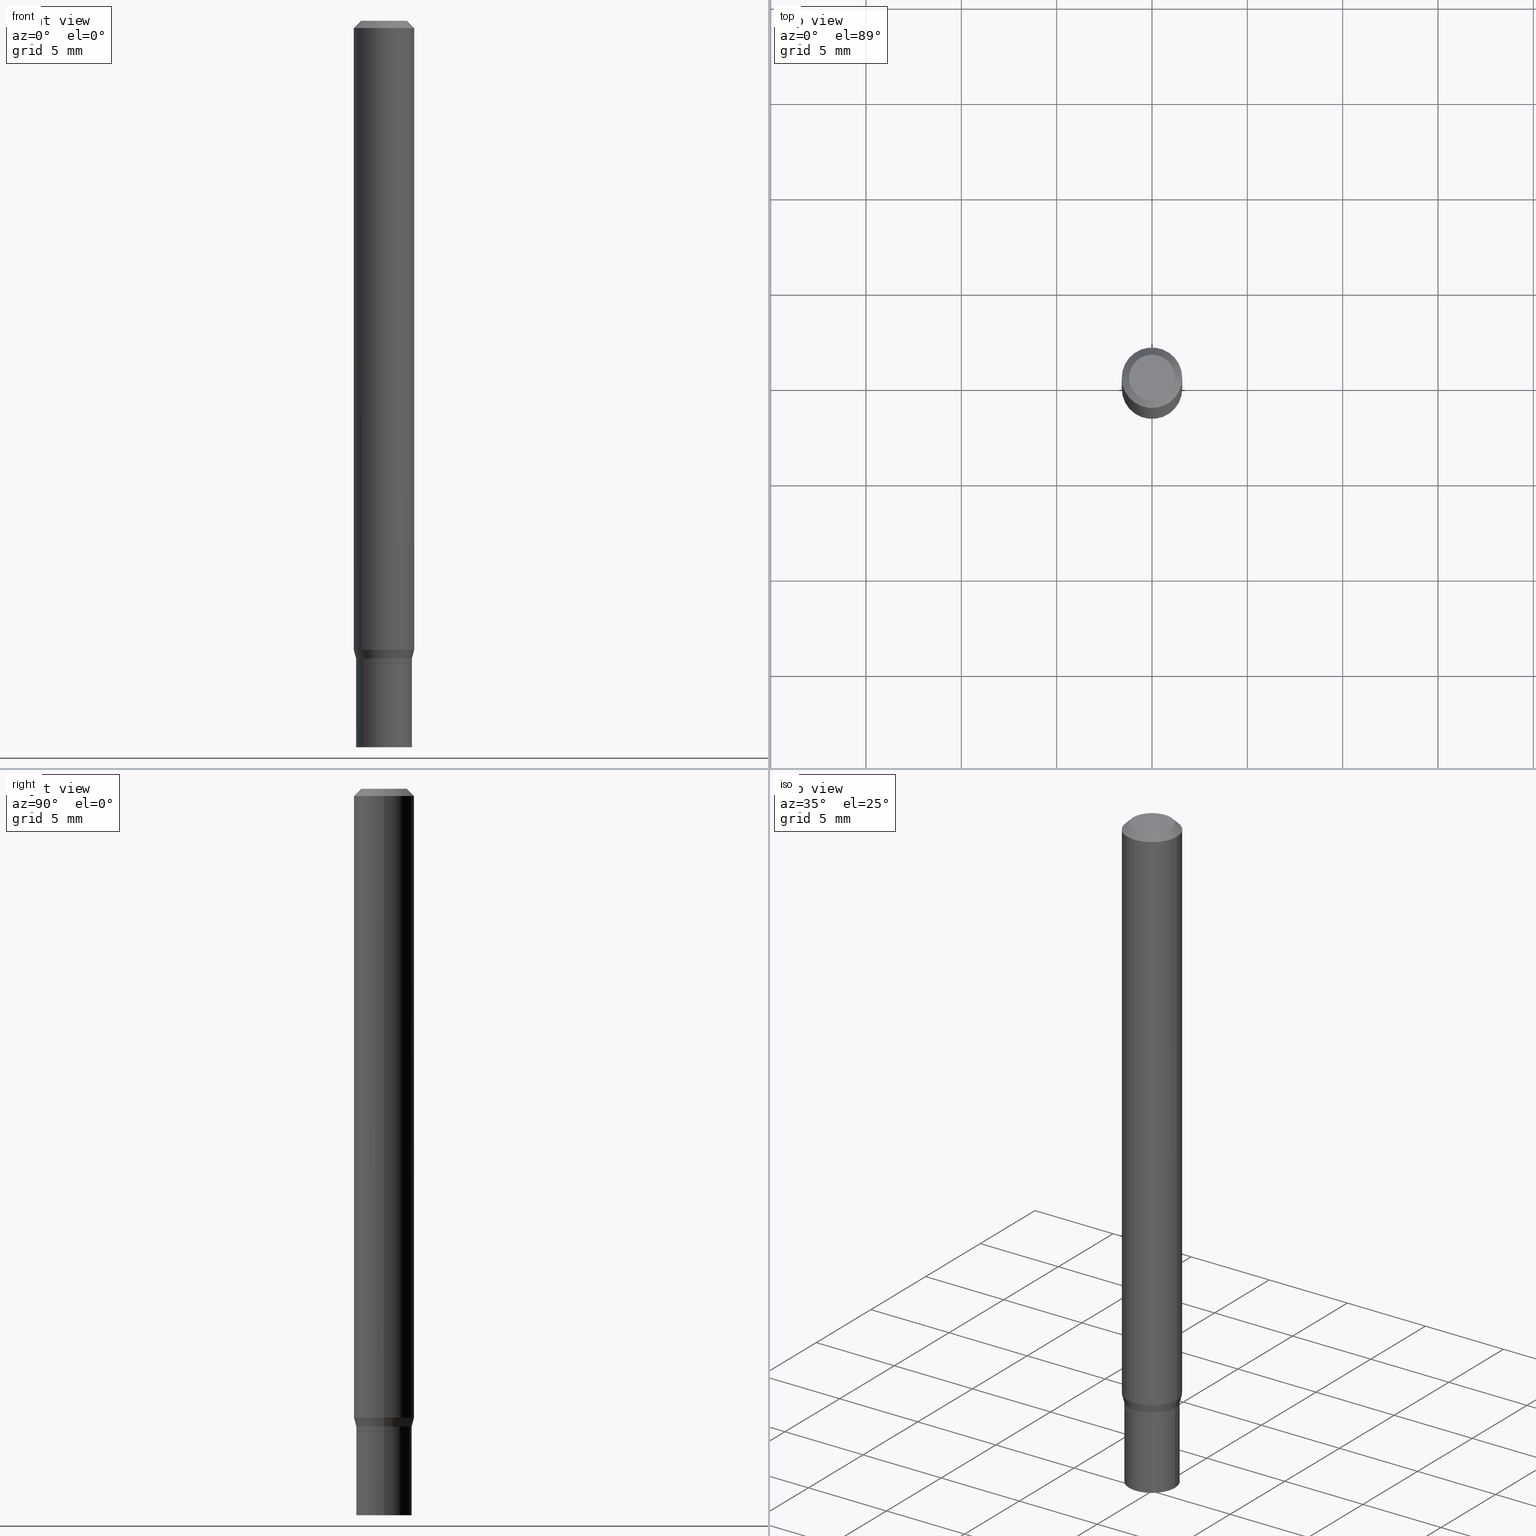
[diagram: canonical four-view strip — front | top / right | iso, engineering-drawing reading convention]
A machine part, canonical four-view strip (front | top / right | iso — engineering-drawing reading convention). The complete STEP part file that produces these views, byte-faithful:
ISO-10303-21;
HEADER;
FILE_DESCRIPTION (( 'STEP AP203' ),
    '1' );
FILE_NAME ('00369.STEP',
    '2024-03-19T21:04:32',
    ( '' ),
    ( '' ),
    'SwSTEP 2.0',
    'SolidWorks 2023',
    '' );
FILE_SCHEMA (( 'CONFIG_CONTROL_DESIGN' ));
ENDSEC;

DATA;
#1 = CARTESIAN_POINT ( 'NONE',  ( 0.06250000000000000000, -4.969564161860607604E-15, -1.298339745962155511 ) ) ;
#2 = CC_DESIGN_PERSON_AND_ORGANIZATION_ASSIGNMENT ( #248, #50, ( #121 ) ) ;
#3 = APPROVAL_DATE_TIME ( #37, #295 ) ;
#4 = APPROVAL_DATE_TIME ( #313, #353 ) ;
#5 = ORIENTED_EDGE ( 'NONE', *, *, #57, .T. ) ;
#6 = DIRECTION ( 'NONE',  ( -2.445468806185136597E-29, 3.491481338843145583E-15, 1.000000000000000000 ) ) ;
#7 = FACE_OUTER_BOUND ( 'NONE', #159, .T. ) ;
#8 = COORDINATED_UNIVERSAL_TIME_OFFSET ( 5, 0, .BEHIND. ) ;
#9 = CALENDAR_DATE ( 2024, 19, 3 ) ;
#10 = AXIS2_PLACEMENT_3D ( 'NONE', #328, #406, #298 ) ;
#11 = EDGE_CURVE ( 'NONE', #437, #156, #58, .T. ) ;
#12 = CARTESIAN_POINT ( 'NONE',  ( 3.245137105807676860E-29, -4.633195736644854276E-15, -1.327000000000000179 ) ) ;
#13 = MANIFOLD_SOLID_BREP ( 'Body-Move/Copy2[1]', #335 ) ;
#14 = ADVANCED_FACE ( 'NONE', ( #233 ), #379, .F. ) ;
#15 = CARTESIAN_POINT ( 'NONE',  ( 3.245137105807676860E-29, -4.633195736644854276E-15, -1.327000000000000179 ) ) ;
#16 = CARTESIAN_POINT ( 'NONE',  ( 4.015203539669927580E-16, 0.05749999999999536732, -1.327000000000000401 ) ) ;
#17 = DIRECTION ( 'NONE',  ( 1.000000000000000000, -6.982962677686265133E-15, 0.000000000000000000 ) ) ;
#18 = DIRECTION ( 'NONE',  ( -2.445468806185136877E-29, 3.491481338843145188E-15, 1.000000000000000000 ) ) ;
#19 = CIRCLE ( 'NONE', #246, 0.05750000000000000250 ) ;
#20 = ORIENTED_EDGE ( 'NONE', *, *, #142, .F. ) ;
#21 = CARTESIAN_POINT ( 'NONE',  ( 3.668203209277705088E-31, -5.237222008264718399E-17, -0.01499999999999999944 ) ) ;
#22 = EDGE_CURVE ( 'NONE', #306, #451, #154, .T. ) ;
#23 = AXIS2_PLACEMENT_3D ( 'NONE', #419, #428, #390 ) ;
#24 = VERTEX_POINT ( 'NONE', #192 ) ;
#25 = AXIS2_PLACEMENT_3D ( 'NONE', #375, #85, #225 ) ;
#26 = ADVANCED_FACE ( 'NONE', ( #343 ), #149, .T. ) ;
#27 = CARTESIAN_POINT ( 'NONE',  ( -0.06250000000000000000, 3.840629472727444916E-16, -0.01499999999999999944 ) ) ;
#28 = DIRECTION ( 'NONE',  ( -1.000000000000000000, 6.982962677686265922E-15, -4.876176775795935793E-29 ) ) ;
#29 = DIRECTION ( 'NONE',  ( -2.445468806185136597E-29, 3.491481338843145583E-15, 1.000000000000000000 ) ) ;
#30 = ORIENTED_EDGE ( 'NONE', *, *, #198, .F. ) ;
#31 = CIRCLE ( 'NONE', #59, 0.04749999999999999362 ) ;
#32 = VECTOR ( 'NONE', #465, 39.37007874015748143 ) ;
#33 = CC_DESIGN_APPROVAL ( #372, ( #173 ) ) ;
#34 = DIRECTION ( 'NONE',  ( -2.445468806185136597E-29, 3.491481338843145583E-15, 1.000000000000000000 ) ) ;
#35 = VERTEX_POINT ( 'NONE', #307 ) ;
#36 = ADVANCED_FACE ( 'NONE', ( #303 ), #276, .T. ) ;
#37 = DATE_AND_TIME ( #9, #162 ) ;
#38 = CARTESIAN_POINT ( 'NONE',  ( -0.04749999999999999362, 3.578768372314206562E-16, -1.989643822619551895E-16 ) ) ;
#39 = VERTEX_POINT ( 'NONE', #201 ) ;
#40 = COORDINATED_UNIVERSAL_TIME_OFFSET ( 5, 0, .BEHIND. ) ;
#41 = EDGE_LOOP ( 'NONE', ( #351, #123 ) ) ;
#42 = DIRECTION ( 'NONE',  ( -2.445468806185136597E-29, 3.491481338843145583E-15, 1.000000000000000000 ) ) ;
#43 = APPLICATION_CONTEXT ( 'configuration controlled 3d designs of mechanical parts and assemblies' ) ;
#44 = DIRECTION ( 'NONE',  ( 1.000000000000000000, -6.982962677686266711E-15, 4.876176775795935793E-29 ) ) ;
#45 = VECTOR ( 'NONE', #52, 39.37007874015748143 ) ;
#46 = PERSON_AND_ORGANIZATION ( #194, #247 ) ;
#47 = ADVANCED_FACE ( 'NONE', ( #348 ), #405, .T. ) ;
#48 = DIRECTION ( 'NONE',  ( -2.438088387897960049E-29, 3.491481338843145188E-15, 1.000000000000000000 ) ) ;
#49 = PERSON_AND_ORGANIZATION_ROLE ( 'creator' ) ;
#50 = PERSON_AND_ORGANIZATION_ROLE ( 'creator' ) ;
#51 = AXIS2_PLACEMENT_3D ( 'NONE', #347, #34, #128 ) ;
#52 = DIRECTION ( 'NONE',  ( -2.445468806185136877E-29, 3.491481338843145188E-15, 1.000000000000000000 ) ) ;
#53 = DIRECTION ( 'NONE',  ( -2.445468806185136597E-29, 3.491481338843145583E-15, 1.000000000000000000 ) ) ;
#54 = CARTESIAN_POINT ( 'NONE',  ( 0.05750000000000000250, -4.015203539669603161E-16, 2.803801646082662941E-30 ) ) ;
#55 = PLANE ( 'NONE',  #229 ) ;
#56 = VERTEX_POINT ( 'NONE', #232 ) ;
#57 = EDGE_CURVE ( 'NONE', #101, #35, #281, .T. ) ;
#58 = CIRCLE ( 'NONE', #112, 0.05749999999999992617 ) ;
#59 = AXIS2_PLACEMENT_3D ( 'NONE', #285, #438, #250 ) ;
#60 = CARTESIAN_POINT ( 'NONE',  ( 3.316907271900976096E-16, 0.04749999999999999362, -2.653275547260257586E-16 ) ) ;
#61 = CC_DESIGN_DATE_AND_TIME_ASSIGNMENT ( #217, #324, ( #121 ) ) ;
#62 = ORIENTED_EDGE ( 'NONE', *, *, #11, .T. ) ;
#63 = CONICAL_SURFACE ( 'NONE', #300, 0.06250000000000000000, 0.7853981633974549403 ) ;
#64 = LINE ( 'NONE', #344, #125 ) ;
#65 = ADVANCED_FACE ( 'NONE', ( #415 ), #88, .T. ) ;
#66 = ORIENTED_EDGE ( 'NONE', *, *, #236, .F. ) ;
#67 = AXIS2_PLACEMENT_3D ( 'NONE', #445, #187, #17 ) ;
#68 = MECHANICAL_CONTEXT ( 'NONE', #358, 'mechanical' ) ;
#69 = PERSON_AND_ORGANIZATION ( #194, #247 ) ;
#70 = VERTEX_POINT ( 'NONE', #273 ) ;
#71 = FACE_OUTER_BOUND ( 'NONE', #117, .T. ) ;
#72 = VECTOR ( 'NONE', #120, 39.37007874015748143 ) ;
#73 = AXIS2_PLACEMENT_3D ( 'NONE', #60, #197, #28 ) ;
#74 = ORIENTED_EDGE ( 'NONE', *, *, #364, .T. ) ;
#75 = CARTESIAN_POINT ( 'NONE',  ( -0.06250000000000000000, -1.848661397443869088E-15, -0.01499999999999999944 ) ) ;
#76 = LINE ( 'NONE', #243, #280 ) ;
#77 = CONICAL_SURFACE ( 'NONE', #392, 0.06250000000000000000, 0.7853981633974549403 ) ;
#78 = LOCAL_TIME ( 17, 4, 32.00000000000000000, #8 ) ;
#79 = DIRECTION ( 'NONE',  ( -2.445468806185136877E-29, 3.491481338843145188E-15, 1.000000000000000000 ) ) ;
#80 = CONICAL_SURFACE ( 'NONE', #237, 0.05749999999999991923, 0.2617993877991487972 ) ;
#81 = FACE_OUTER_BOUND ( 'NONE', #41, .T. ) ;
#82 = DIRECTION ( 'NONE',  ( 1.000000000000000000, -6.982962677686265133E-15, 0.000000000000000000 ) ) ;
#83 = ORIENTED_EDGE ( 'NONE', *, *, #245, .F. ) ;
#84 = FACE_OUTER_BOUND ( 'NONE', #222, .T. ) ;
#85 = DIRECTION ( 'NONE',  ( -2.445468806185136597E-29, 3.491481338843145583E-15, 1.000000000000000000 ) ) ;
#86 = ORIENTED_EDGE ( 'NONE', *, *, #397, .F. ) ;
#87 = DIRECTION ( 'NONE',  ( -1.000000000000000000, 6.982962677686266711E-15, 0.000000000000000000 ) ) ;
#88 = CYLINDRICAL_SURFACE ( 'NONE', #443, 0.06250000000000000000 ) ;
#89 = AXIS2_PLACEMENT_3D ( 'NONE', #114, #370, #115 ) ;
#90 = ADVANCED_FACE ( 'NONE', ( #456 ), #424, .F. ) ;
#91 = ORIENTED_EDGE ( 'NONE', *, *, #257, .F. ) ;
#92 = ADVANCED_FACE ( 'NONE', ( #395 ), #215, .T. ) ;
#93 = CARTESIAN_POINT ( 'NONE',  ( 3.243914371404584059E-29, -4.631449995975432773E-15, -1.326500000000000234 ) ) ;
#94 = AXIS2_PLACEMENT_3D ( 'NONE', #287, #436, #310 ) ;
#95 = EDGE_CURVE ( 'NONE', #156, #24, #76, .T. ) ;
#96 = ORIENTED_EDGE ( 'NONE', *, *, #337, .T. ) ;
#97 = EDGE_LOOP ( 'NONE', ( #400, #374, #86, #282 ) ) ;
#98 = LINE ( 'NONE', #272, #45 ) ;
#99 = ORIENTED_EDGE ( 'NONE', *, *, #453, .T. ) ;
#100 = CARTESIAN_POINT ( 'NONE',  ( 0.06250000000000000000, -4.364351673553916694E-16, 3.047610484872459871E-30 ) ) ;
#101 = VERTEX_POINT ( 'NONE', #1 ) ;
#102 = PERSON_AND_ORGANIZATION ( #194, #247 ) ;
#103 = DIRECTION ( 'NONE',  ( 1.000000000000000000, -6.982962677686266711E-15, 4.876176775795935793E-29 ) ) ;
#104 = COORDINATED_UNIVERSAL_TIME_OFFSET ( 5, 0, .BEHIND. ) ;
#105 = LENGTH_MEASURE_WITH_UNIT ( LENGTH_MEASURE( 0.02539999999999999897 ), #131 );
#106 = APPROVAL_DATE_TIME ( #144, #372 ) ;
#107 = CIRCLE ( 'NONE', #444, 0.05750000000000000250 ) ;
#108 = PERSON_AND_ORGANIZATION ( #194, #247 ) ;
#109 = EDGE_CURVE ( 'NONE', #306, #56, #31, .T. ) ;
#110 = CARTESIAN_POINT ( 'NONE',  ( 3.668203209277704895E-29, -5.237222008264718177E-15, -1.500000000000000222 ) ) ;
#111 = VERTEX_POINT ( 'NONE', #255 ) ;
#112 = AXIS2_PLACEMENT_3D ( 'NONE', #93, #340, #383 ) ;
#113 = LINE ( 'NONE', #259, #305 ) ;
#114 = CARTESIAN_POINT ( 'NONE',  ( 3.243914371404584059E-29, -4.631449995975432773E-15, -1.326500000000000234 ) ) ;
#115 = DIRECTION ( 'NONE',  ( 1.000000000000000000, -6.982962677686265922E-15, 0.000000000000000000 ) ) ;
#116 = ADVANCED_FACE ( 'NONE', ( #7 ), #401, .F. ) ;
#117 = EDGE_LOOP ( 'NONE', ( #206, #269, #336, #431 ) ) ;
#118 = DIRECTION ( 'NONE',  ( -2.445468806185136597E-29, 3.491481338843145583E-15, 1.000000000000000000 ) ) ;
#119 = CIRCLE ( 'NONE', #25, 0.06250000000000000000 ) ;
#120 = DIRECTION ( 'NONE',  ( -0.7071067811865522357, 2.468850131082306364E-15, -0.7071067811865427988 ) ) ;
#121 = PRODUCT_DEFINITION ( 'UNKNOWN', '', #238, #227 ) ;
#122 = ORIENTED_EDGE ( 'NONE', *, *, #416, .F. ) ;
#123 = ORIENTED_EDGE ( 'NONE', *, *, #165, .T. ) ;
#124 = DIRECTION ( 'NONE',  ( -2.438088387897960049E-29, 3.491481338843145188E-15, 1.000000000000000000 ) ) ;
#125 = VECTOR ( 'NONE', #169, 39.37007874015748143 ) ;
#126 = ADVANCED_FACE ( 'NONE', ( #267 ), #148, .T. ) ;
#127 = DIRECTION ( 'NONE',  ( -2.445468806185136597E-29, 3.491481338843145583E-15, 1.000000000000000000 ) ) ;
#128 = DIRECTION ( 'NONE',  ( 1.000000000000000000, -6.982962677686266711E-15, 0.000000000000000000 ) ) ;
#129 = LINE ( 'NONE', #398, #291 ) ;
#130 = DATE_AND_TIME ( #140, #78 ) ;
#131 =( LENGTH_UNIT ( ) NAMED_UNIT ( * ) SI_UNIT ( $, .METRE. ) );
#132 = CARTESIAN_POINT ( 'NONE',  ( 3.220682417745825876E-29, -4.598280923256423416E-15, -1.317000000000000171 ) ) ;
#133 = CIRCLE ( 'NONE', #89, 0.05749999999999992617 ) ;
#134 = SECURITY_CLASSIFICATION_LEVEL ( 'unclassified' ) ;
#135 = ORIENTED_EDGE ( 'NONE', *, *, #165, .F. ) ;
#136 = ORIENTED_EDGE ( 'NONE', *, *, #109, .F. ) ;
#137 = CALENDAR_DATE ( 2024, 19, 3 ) ;
#138 = DIRECTION ( 'NONE',  ( -1.000000000000000000, 6.982962677686266711E-15, 0.000000000000000000 ) ) ;
#139 = EDGE_CURVE ( 'NONE', #235, #111, #151, .T. ) ;
#140 = CALENDAR_DATE ( 2024, 19, 3 ) ;
#141 = CARTESIAN_POINT ( 'NONE',  ( 3.668203209277705088E-31, -5.237222008264718399E-17, -0.01499999999999999944 ) ) ;
#142 = EDGE_CURVE ( 'NONE', #70, #451, #260, .T. ) ;
#143 = CIRCLE ( 'NONE', #220, 0.05750000000000000250 ) ;
#144 = DATE_AND_TIME ( #137, #425 ) ;
#145 = DIRECTION ( 'NONE',  ( 1.000000000000000000, -6.982962677686262766E-15, 0.000000000000000000 ) ) ;
#146 = DIRECTION ( 'NONE',  ( -2.445468806185136597E-29, 3.491481338843145583E-15, 1.000000000000000000 ) ) ;
#147 = CC_DESIGN_PERSON_AND_ORGANIZATION_ASSIGNMENT ( #46, #209, ( #238 ) ) ;
#148 = CYLINDRICAL_SURFACE ( 'NONE', #10, 0.05750000000000000250 ) ;
#149 = CYLINDRICAL_SURFACE ( 'NONE', #155, 0.05749999999999991923 ) ;
#150 = CC_DESIGN_PERSON_AND_ORGANIZATION_ASSIGNMENT ( #321, #391, ( #173 ) ) ;
#151 = CIRCLE ( 'NONE', #361, 0.05750000000000000250 ) ;
#152 = CARTESIAN_POINT ( 'NONE',  ( -0.05749999999999991923, -4.189718850194366629E-15, -1.317000000000000171 ) ) ;
#153 = CARTESIAN_POINT ( 'NONE',  ( 0.05750000000000000250, -5.638742362231678986E-15, -1.500000000000000222 ) ) ;
#154 = LINE ( 'NONE', #27, #72 ) ;
#155 = AXIS2_PLACEMENT_3D ( 'NONE', #241, #195, #271 ) ;
#156 = VERTEX_POINT ( 'NONE', #185 ) ;
#157 = PRODUCT_RELATED_PRODUCT_CATEGORY ( 'detail', '', ( #218 ) ) ;
#158 = DIRECTION ( 'NONE',  ( 1.000000000000000000, -6.982962677686262766E-15, 0.000000000000000000 ) ) ;
#159 = EDGE_LOOP ( 'NONE', ( #193, #211 ) ) ;
#160 = CARTESIAN_POINT ( 'NONE',  ( 0.05700000000000000205, -5.031224609272971289E-15, -1.327000000000000179 ) ) ;
#161 = VECTOR ( 'NONE', #329, 39.37007874015748143 ) ;
#162 = LOCAL_TIME ( 17, 4, 32.00000000000000000, #174 ) ;
#163 = CARTESIAN_POINT ( 'NONE',  ( 0.05749999999999991923, -4.999801277223383436E-15, -1.317000000000000171 ) ) ;
#164 = ORIENTED_EDGE ( 'NONE', *, *, #317, .F. ) ;
#165 = EDGE_CURVE ( 'NONE', #378, #39, #19, .T. ) ;
#166 = APPROVAL_STATUS ( 'not_yet_approved' ) ;
#167 = ORIENTED_EDGE ( 'NONE', *, *, #453, .F. ) ;
#168 = AXIS2_PLACEMENT_3D ( 'NONE', #339, #234, #265 ) ;
#169 = DIRECTION ( 'NONE',  ( 0.7071067811865656694, -2.468850131082446387E-15, 0.7071067811865294761 ) ) ;
#170 = EDGE_CURVE ( 'NONE', #426, #24, #274, .T. ) ;
#171 = DIRECTION ( 'NONE',  ( 1.000000000000000000, 0.000000000000000000, 0.000000000000000000 ) ) ;
#172 =( GEOMETRIC_REPRESENTATION_CONTEXT ( 3 ) GLOBAL_UNCERTAINTY_ASSIGNED_CONTEXT ( ( #266 ) ) GLOBAL_UNIT_ASSIGNED_CONTEXT ( ( #288, #231, #294 ) ) REPRESENTATION_CONTEXT ( 'NONE', 'WORKASPACE' ) );
#173 = SECURITY_CLASSIFICATION ( '', '', #134 ) ;
#174 = COORDINATED_UNIVERSAL_TIME_OFFSET ( 5, 0, .BEHIND. ) ;
#175 = ADVANCED_FACE ( 'NONE', ( #81 ), #55, .F. ) ;
#176 = LINE ( 'NONE', #429, #32 ) ;
#177 = CALENDAR_DATE ( 2024, 19, 3 ) ;
#178 = DIRECTION ( 'NONE',  ( 1.000000000000000000, -6.982962677686267499E-15, 4.852736867747366768E-29 ) ) ;
#179 = AXIS2_PLACEMENT_3D ( 'NONE', #381, #124, #420 ) ;
#180 = CONICAL_SURFACE ( 'NONE', #409, 0.05700000000000000205, 0.7853981633974739252 ) ;
#181 = DIRECTION ( 'NONE',  ( -2.445468806185136597E-29, 3.491481338843145583E-15, 1.000000000000000000 ) ) ;
#182 = DIRECTION ( 'NONE',  ( 2.438088387897960049E-29, -3.491481338843145188E-15, -1.000000000000000000 ) ) ;
#183 = LINE ( 'NONE', #54, #161 ) ;
#184 = DIRECTION ( 'NONE',  ( 2.445468806185136597E-29, -3.491481338843145583E-15, -1.000000000000000000 ) ) ;
#185 = CARTESIAN_POINT ( 'NONE',  ( -0.05749999999999992617, -4.222887922913375986E-15, -1.326500000000000234 ) ) ;
#186 = ORIENTED_EDGE ( 'NONE', *, *, #364, .F. ) ;
#187 = DIRECTION ( 'NONE',  ( -2.445468806185136597E-29, 3.491481338843145583E-15, 1.000000000000000000 ) ) ;
#188 = EDGE_LOOP ( 'NONE', ( #283, #357, #74, #167 ) ) ;
#189 = EDGE_LOOP ( 'NONE', ( #203, #315, #427, #388 ) ) ;
#190 = CONICAL_SURFACE ( 'NONE', #51, 0.05749999999999991923, 0.2617993877991487972 ) ;
#191 = PRODUCT_DEFINITION_SHAPE ( 'NONE', 'NONE',  #121 ) ;
#192 = CARTESIAN_POINT ( 'NONE',  ( -0.05749999999999991923, -4.139379317424759580E-15, -1.317000000000000171 ) ) ;
#193 = ORIENTED_EDGE ( 'NONE', *, *, #454, .F. ) ;
#194 = PERSON ( 'UNSPECIFIED', 'UNSPECIFIED', 'UNSPECIFIED', ('UNSPECIFIED'), ('UNSPECIFIED'), ('UNSPECIFIED') ) ;
#195 = DIRECTION ( 'NONE',  ( -2.445468806185136597E-29, 3.491481338843145583E-15, 1.000000000000000000 ) ) ;
#196 = AXIS2_PLACEMENT_3D ( 'NONE', #216, #404, #178 ) ;
#197 = DIRECTION ( 'NONE',  ( 2.438088387897960049E-29, -3.491481338843145188E-15, -1.000000000000000000 ) ) ;
#198 = EDGE_CURVE ( 'NONE', #156, #437, #133, .T. ) ;
#199 = FACE_OUTER_BOUND ( 'NONE', #189, .T. ) ;
#200 = ORIENTED_EDGE ( 'NONE', *, *, #337, .F. ) ;
#201 = CARTESIAN_POINT ( 'NONE',  ( 0.05750000000000000250, -5.034716090611815085E-15, -1.327000000000000179 ) ) ;
#202 = CIRCLE ( 'NONE', #67, 0.05700000000000000205 ) ;
#203 = ORIENTED_EDGE ( 'NONE', *, *, #170, .T. ) ;
#204 = ADVANCED_FACE ( 'NONE', ( #408 ), #77, .T. ) ;
#205 = APPROVAL_ROLE ( '' ) ;
#206 = ORIENTED_EDGE ( 'NONE', *, *, #345, .T. ) ;
#207 = DIRECTION ( 'NONE',  ( 0.2588190451025201289, 1.565188264969631631E-15, 0.9659258262890684232 ) ) ;
#208 = ADVANCED_FACE ( 'NONE', ( #84 ), #180, .T. ) ;
#209 = PERSON_AND_ORGANIZATION_ROLE ( 'design_supplier' ) ;
#210 = FACE_OUTER_BOUND ( 'NONE', #373, .T. ) ;
#211 = ORIENTED_EDGE ( 'NONE', *, *, #334, .F. ) ;
#212 = VECTOR ( 'NONE', #79, 39.37007874015748143 ) ;
#213 = CC_DESIGN_SECURITY_CLASSIFICATION ( #173, ( #238 ) ) ;
#214 = CARTESIAN_POINT ( 'NONE',  ( 3.220682417745825876E-29, -4.598280923256423416E-15, -1.317000000000000171 ) ) ;
#215 = CYLINDRICAL_SURFACE ( 'NONE', #365, 0.05749999999999991923 ) ;
#216 = CARTESIAN_POINT ( 'NONE',  ( 4.865611903635008365E-45, -6.946804277620623666E-31, -1.989643822619527736E-16 ) ) ;
#217 = DATE_AND_TIME ( #177, #301 ) ;
#218 = PRODUCT ( '00369', '00369', '', ( #68 ) ) ;
#219 = CARTESIAN_POINT ( 'NONE',  ( 3.220682417745825876E-29, -4.598280923256423416E-15, -1.317000000000000171 ) ) ;
#220 = AXIS2_PLACEMENT_3D ( 'NONE', #359, #6, #254 ) ;
#221 = DIRECTION ( 'NONE',  ( 1.000000000000000000, -6.982962677686273810E-15, 0.000000000000000000 ) ) ;
#222 = EDGE_LOOP ( 'NONE', ( #122, #332, #292, #30 ) ) ;
#223 = CARTESIAN_POINT ( 'NONE',  ( 3.175049348580785611E-29, -4.533128994505215935E-15, -1.298339745962155511 ) ) ;
#224 = CARTESIAN_POINT ( 'NONE',  ( 3.245137105807676860E-29, -4.633195736644854276E-15, -1.327000000000000179 ) ) ;
#225 = DIRECTION ( 'NONE',  ( 1.000000000000000000, -6.982962677686266711E-15, 0.000000000000000000 ) ) ;
#226 = ORIENTED_EDGE ( 'NONE', *, *, #446, .T. ) ;
#227 = DESIGN_CONTEXT ( 'detailed design', #43, 'design' ) ;
#228 = DIRECTION ( 'NONE',  ( -2.445468806185136597E-29, 3.491481338843145583E-15, 1.000000000000000000 ) ) ;
#229 = AXIS2_PLACEMENT_3D ( 'NONE', #16, #182, #450 ) ;
#230 = LOCAL_TIME ( 17, 4, 32.00000000000000000, #40 ) ;
#231 =( NAMED_UNIT ( * ) PLANE_ANGLE_UNIT ( ) SI_UNIT ( $, .RADIAN. ) );
#232 = CARTESIAN_POINT ( 'NONE',  ( 0.04749999999999999362, -4.035134999187581581E-16, -1.989643822619502098E-16 ) ) ;
#233 = FACE_OUTER_BOUND ( 'NONE', #387, .T. ) ;
#234 = DIRECTION ( 'NONE',  ( -2.445468806185136597E-29, 3.491481338843145583E-15, 1.000000000000000000 ) ) ;
#235 = VERTEX_POINT ( 'NONE', #153 ) ;
#236 = EDGE_CURVE ( 'NONE', #24, #70, #382, .T. ) ;
#237 = AXIS2_PLACEMENT_3D ( 'NONE', #132, #127, #360 ) ;
#238 = PRODUCT_DEFINITION_FORMATION_WITH_SPECIFIED_SOURCE ( 'ANY', '', #218, .NOT_KNOWN. ) ;
#239 = CARTESIAN_POINT ( 'NONE',  ( 0.06250000000000000000, -4.811533449433679005E-16, -0.01499999999999999944 ) ) ;
#240 = ORIENTED_EDGE ( 'NONE', *, *, #22, .F. ) ;
#241 = CARTESIAN_POINT ( 'NONE',  ( 0.000000000000000000, 0.000000000000000000, 0.000000000000000000 ) ) ;
#242 = ORIENTED_EDGE ( 'NONE', *, *, #458, .T. ) ;
#243 = CARTESIAN_POINT ( 'NONE',  ( -0.05749999999999991923, 4.085620730620570330E-16, -2.828387676896566509E-30 ) ) ;
#244 = PERSON_AND_ORGANIZATION ( #194, #247 ) ;
#245 = EDGE_CURVE ( 'NONE', #70, #101, #333, .T. ) ;
#246 = AXIS2_PLACEMENT_3D ( 'NONE', #12, #146, #447 ) ;
#247 = ORGANIZATION ( 'UNSPECIFIED', 'UNSPECIFIED', '' ) ;
#248 = PERSON_AND_ORGANIZATION ( #194, #247 ) ;
#249 = CARTESIAN_POINT ( 'NONE',  ( 3.245137105807676860E-29, -4.633195736644854276E-15, -1.327000000000000179 ) ) ;
#250 = DIRECTION ( 'NONE',  ( 1.000000000000000000, -6.982962677686267499E-15, 4.852736867747366768E-29 ) ) ;
#251 = APPROVAL_STATUS ( 'not_yet_approved' ) ;
#252 = ORIENTED_EDGE ( 'NONE', *, *, #317, .T. ) ;
#253 = EDGE_CURVE ( 'NONE', #56, #35, #422, .T. ) ;
#254 = DIRECTION ( 'NONE',  ( 1.000000000000000000, -6.982962677686273810E-15, 0.000000000000000000 ) ) ;
#255 = CARTESIAN_POINT ( 'NONE',  ( -0.05750000000000000250, -4.526646799392727862E-15, -1.500000000000000222 ) ) ;
#256 = CIRCLE ( 'NONE', #309, 0.05700000000000000205 ) ;
#257 = EDGE_CURVE ( 'NONE', #279, #437, #64, .T. ) ;
#258 = DIRECTION ( 'NONE',  ( 1.000000000000000000, -6.982962677686266711E-15, 0.000000000000000000 ) ) ;
#259 = CARTESIAN_POINT ( 'NONE',  ( 0.05749999999999991923, -4.015203539669597738E-16, 2.803801646082659087E-30 ) ) ;
#260 = LINE ( 'NONE', #296, #212 ) ;
#261 = CIRCLE ( 'NONE', #414, 0.05749999999999991923 ) ;
#262 = APPROVAL_PERSON_ORGANIZATION ( #244, #295, #442 ) ;
#263 = FACE_OUTER_BOUND ( 'NONE', #466, .T. ) ;
#264 = ORIENTED_EDGE ( 'NONE', *, *, #95, .T. ) ;
#265 = DIRECTION ( 'NONE',  ( 1.000000000000000000, -6.982962677686265133E-15, 0.000000000000000000 ) ) ;
#266 = UNCERTAINTY_MEASURE_WITH_UNIT (LENGTH_MEASURE( 1.000000000000000082E-05 ), #288, 'distance_accuracy_value', 'NONE');
#267 = FACE_OUTER_BOUND ( 'NONE', #462, .T. ) ;
#268 = ADVANCED_BREP_SHAPE_REPRESENTATION ( '00369', ( #13, #464, #284 ), #172 ) ;
#269 = ORIENTED_EDGE ( 'NONE', *, *, #142, .T. ) ;
#270 = CC_DESIGN_DATE_AND_TIME_ASSIGNMENT ( #130, #350, ( #173 ) ) ;
#271 = DIRECTION ( 'NONE',  ( 1.000000000000000000, -6.982962677686266711E-15, 4.876176775795935793E-29 ) ) ;
#272 = CARTESIAN_POINT ( 'NONE',  ( -0.05750000000000000250, 4.085620730620576246E-16, -2.828387676896570712E-30 ) ) ;
#273 = CARTESIAN_POINT ( 'NONE',  ( -0.06250000000000000000, -4.089039784655153318E-15, -1.298339745962155511 ) ) ;
#274 = CIRCLE ( 'NONE', #338, 0.05749999999999991923 ) ;
#275 = ORIENTED_EDGE ( 'NONE', *, *, #440, .T. ) ;
#276 = CYLINDRICAL_SURFACE ( 'NONE', #23, 0.05750000000000000250 ) ;
#277 = EDGE_CURVE ( 'NONE', #111, #378, #98, .T. ) ;
#278 = CYLINDRICAL_SURFACE ( 'NONE', #460, 0.06250000000000000000 ) ;
#279 = VERTEX_POINT ( 'NONE', #160 ) ;
#280 = VECTOR ( 'NONE', #349, 39.37007874015748143 ) ;
#281 = LINE ( 'NONE', #100, #380 ) ;
#282 = ORIENTED_EDGE ( 'NONE', *, *, #384, .F. ) ;
#283 = ORIENTED_EDGE ( 'NONE', *, *, #95, .F. ) ;
#284 = AXIS2_PLACEMENT_3D ( 'NONE', #290, #354, #171 ) ;
#285 = CARTESIAN_POINT ( 'NONE',  ( 4.865611903635008365E-45, -6.946804277620623666E-31, -1.989643822619527736E-16 ) ) ;
#286 = PERSON_AND_ORGANIZATION ( #194, #247 ) ;
#287 = CARTESIAN_POINT ( 'NONE',  ( 3.668203209277705088E-31, -5.237222008264718399E-17, -0.01499999999999999944 ) ) ;
#288 =( CONVERSION_BASED_UNIT ( 'INCH', #105 ) LENGTH_UNIT ( ) NAMED_UNIT ( #412 ) );
#289 = DIRECTION ( 'NONE',  ( 1.000000000000000000, -6.982962677686265922E-15, 4.876176775795935793E-29 ) ) ;
#290 = CARTESIAN_POINT ( 'NONE',  ( 0.000000000000000000, 0.000000000000000000, 0.000000000000000000 ) ) ;
#291 = VECTOR ( 'NONE', #207, 39.37007874015748143 ) ;
#292 = ORIENTED_EDGE ( 'NONE', *, *, #257, .T. ) ;
#293 = APPLICATION_PROTOCOL_DEFINITION ( 'international standard', 'config_control_design', 1994, #43 ) ;
#294 =( NAMED_UNIT ( * ) SI_UNIT ( $, .STERADIAN. ) SOLID_ANGLE_UNIT ( ) );
#295 = APPROVAL ( #366, 'UNSPECIFIED' ) ;
#296 = CARTESIAN_POINT ( 'NONE',  ( -0.06250000000000000000, 4.440892098500626162E-16, -3.074334431409316114E-30 ) ) ;
#297 = DIRECTION ( 'NONE',  ( -2.445468806185136597E-29, 3.491481338843145583E-15, 1.000000000000000000 ) ) ;
#298 = DIRECTION ( 'NONE',  ( 1.000000000000000000, -6.982962677686265922E-15, 4.876176775795935232E-29 ) ) ;
#299 = ORIENTED_EDGE ( 'NONE', *, *, #253, .F. ) ;
#300 = AXIS2_PLACEMENT_3D ( 'NONE', #141, #318, #138 ) ;
#301 = LOCAL_TIME ( 17, 4, 32.00000000000000000, #396 ) ;
#302 = ORIENTED_EDGE ( 'NONE', *, *, #11, .F. ) ;
#303 = FACE_OUTER_BOUND ( 'NONE', #97, .T. ) ;
#304 = CARTESIAN_POINT ( 'NONE',  ( 0.000000000000000000, 0.000000000000000000, 0.000000000000000000 ) ) ;
#305 = VECTOR ( 'NONE', #407, 39.37007874015748143 ) ;
#306 = VERTEX_POINT ( 'NONE', #38 ) ;
#307 = CARTESIAN_POINT ( 'NONE',  ( 0.06250000000000000000, -4.888073874380388472E-16, -0.01499999999999999944 ) ) ;
#308 = ADVANCED_FACE ( 'NONE', ( #210 ), #80, .T. ) ;
#309 = AXIS2_PLACEMENT_3D ( 'NONE', #249, #42, #82 ) ;
#310 = DIRECTION ( 'NONE',  ( 1.000000000000000000, -6.982962677686266711E-15, 0.000000000000000000 ) ) ;
#311 = APPROVAL_PERSON_ORGANIZATION ( #286, #372, #439 ) ;
#312 = EDGE_LOOP ( 'NONE', ( #299, #136, #355, #252 ) ) ;
#313 = DATE_AND_TIME ( #403, #230 ) ;
#314 = CLOSED_SHELL ( 'NONE', ( #26, #47, #410, #331, #326, #308, #65, #204, #14, #116, #208, #92 ) ) ;
#315 = ORIENTED_EDGE ( 'NONE', *, *, #236, .T. ) ;
#316 = CARTESIAN_POINT ( 'NONE',  ( 0.000000000000000000, 0.000000000000000000, 0.000000000000000000 ) ) ;
#317 = EDGE_CURVE ( 'NONE', #451, #35, #455, .T. ) ;
#318 = DIRECTION ( 'NONE',  ( 2.445468806185136597E-29, -3.491481338843145583E-15, -1.000000000000000000 ) ) ;
#319 = ORIENTED_EDGE ( 'NONE', *, *, #245, .T. ) ;
#320 = EDGE_LOOP ( 'NONE', ( #457, #327, #302, #91 ) ) ;
#321 = PERSON_AND_ORGANIZATION ( #194, #247 ) ;
#322 = CARTESIAN_POINT ( 'NONE',  ( -0.05700000000000000205, -4.225537150087486398E-15, -1.327000000000000179 ) ) ;
#323 = DIRECTION ( 'NONE',  ( -2.445468806185136597E-29, 3.491481338843145583E-15, 1.000000000000000000 ) ) ;
#324 = DATE_TIME_ROLE ( 'creation_date' ) ;
#325 = AXIS2_PLACEMENT_3D ( 'NONE', #363, #48, #289 ) ;
#326 = ADVANCED_FACE ( 'NONE', ( #199 ), #190, .T. ) ;
#327 = ORIENTED_EDGE ( 'NONE', *, *, #416, .T. ) ;
#328 = CARTESIAN_POINT ( 'NONE',  ( 0.000000000000000000, 0.000000000000000000, 0.000000000000000000 ) ) ;
#329 = DIRECTION ( 'NONE',  ( -2.445468806185136877E-29, 3.491481338843145188E-15, 1.000000000000000000 ) ) ;
#330 = DIRECTION ( 'NONE',  ( -2.445468806185136597E-29, 3.491481338843145583E-15, 1.000000000000000000 ) ) ;
#331 = ADVANCED_FACE ( 'NONE', ( #71 ), #278, .T. ) ;
#332 = ORIENTED_EDGE ( 'NONE', *, *, #334, .T. ) ;
#333 = CIRCLE ( 'NONE', #435, 0.06250000000000000000 ) ;
#334 = EDGE_CURVE ( 'NONE', #461, #279, #256, .T. ) ;
#335 = CLOSED_SHELL ( 'NONE', ( #36, #90, #126, #175 ) ) ;
#336 = ORIENTED_EDGE ( 'NONE', *, *, #458, .F. ) ;
#337 = EDGE_CURVE ( 'NONE', #56, #306, #368, .T. ) ;
#338 = AXIS2_PLACEMENT_3D ( 'NONE', #219, #330, #258 ) ;
#339 = CARTESIAN_POINT ( 'NONE',  ( 3.245137105807676860E-29, -4.633195736644854276E-15, -1.327000000000000179 ) ) ;
#340 = DIRECTION ( 'NONE',  ( -2.445468806185136597E-29, 3.491481338843145583E-15, 1.000000000000000000 ) ) ;
#341 = ORIENTED_EDGE ( 'NONE', *, *, #253, .T. ) ;
#342 = CARTESIAN_POINT ( 'NONE',  ( 3.175049348580785611E-29, -4.533128994505215935E-15, -1.298339745962155511 ) ) ;
#343 = FACE_OUTER_BOUND ( 'NONE', #430, .T. ) ;
#344 = CARTESIAN_POINT ( 'NONE',  ( 0.05700000000000000205, -5.031224609272971289E-15, -1.327000000000000179 ) ) ;
#345 = EDGE_CURVE ( 'NONE', #101, #70, #376, .T. ) ;
#346 = VECTOR ( 'NONE', #463, 39.37007874015748143 ) ;
#347 = CARTESIAN_POINT ( 'NONE',  ( 3.220682417745825876E-29, -4.598280923256423416E-15, -1.317000000000000171 ) ) ;
#348 = FACE_OUTER_BOUND ( 'NONE', #320, .T. ) ;
#349 = DIRECTION ( 'NONE',  ( -2.445468806185136877E-29, 3.491481338843145188E-15, 1.000000000000000000 ) ) ;
#350 = DATE_TIME_ROLE ( 'classification_date' ) ;
#351 = ORIENTED_EDGE ( 'NONE', *, *, #397, .T. ) ;
#352 = ORIENTED_EDGE ( 'NONE', *, *, #446, .F. ) ;
#353 = APPROVAL ( #166, 'UNSPECIFIED' ) ;
#354 = DIRECTION ( 'NONE',  ( 0.000000000000000000, 0.000000000000000000, 1.000000000000000000 ) ) ;
#355 = ORIENTED_EDGE ( 'NONE', *, *, #22, .T. ) ;
#356 = CARTESIAN_POINT ( 'NONE',  ( 0.000000000000000000, 0.000000000000000000, 0.000000000000000000 ) ) ;
#357 = ORIENTED_EDGE ( 'NONE', *, *, #198, .T. ) ;
#358 = APPLICATION_CONTEXT ( 'configuration controlled 3d designs of mechanical parts and assemblies' ) ;
#359 = CARTESIAN_POINT ( 'NONE',  ( 3.668203209277704895E-29, -5.237222008264718177E-15, -1.500000000000000222 ) ) ;
#360 = DIRECTION ( 'NONE',  ( 1.000000000000000000, -6.982962677686266711E-15, 0.000000000000000000 ) ) ;
#361 = AXIS2_PLACEMENT_3D ( 'NONE', #110, #53, #221 ) ;
#362 = CC_DESIGN_APPROVAL ( #353, ( #238 ) ) ;
#363 = CARTESIAN_POINT ( 'NONE',  ( 3.245137105807676860E-29, -4.633195736644854276E-15, -1.327000000000000179 ) ) ;
#364 = EDGE_CURVE ( 'NONE', #437, #426, #113, .T. ) ;
#365 = AXIS2_PLACEMENT_3D ( 'NONE', #316, #323, #44 ) ;
#366 = APPROVAL_STATUS ( 'not_yet_approved' ) ;
#367 = CC_DESIGN_PERSON_AND_ORGANIZATION_ASSIGNMENT ( #108, #49, ( #238 ) ) ;
#368 = CIRCLE ( 'NONE', #196, 0.04749999999999999362 ) ;
#369 = CARTESIAN_POINT ( 'NONE',  ( -0.05750000000000000250, -4.526646799392727862E-15, -1.327000000000000179 ) ) ;
#370 = DIRECTION ( 'NONE',  ( -2.445468806185136597E-29, 3.491481338843145583E-15, 1.000000000000000000 ) ) ;
#371 = ORIENTED_EDGE ( 'NONE', *, *, #277, .F. ) ;
#372 = APPROVAL ( #251, 'UNSPECIFIED' ) ;
#373 = EDGE_LOOP ( 'NONE', ( #66, #99, #275, #83 ) ) ;
#374 = ORIENTED_EDGE ( 'NONE', *, *, #277, .T. ) ;
#375 = CARTESIAN_POINT ( 'NONE',  ( 3.668203209277705088E-31, -5.237222008264718399E-17, -0.01499999999999999944 ) ) ;
#376 = CIRCLE ( 'NONE', #385, 0.06250000000000000000 ) ;
#377 = APPROVAL_PERSON_ORGANIZATION ( #69, #353, #205 ) ;
#378 = VERTEX_POINT ( 'NONE', #369 ) ;
#379 = PLANE ( 'NONE',  #73 ) ;
#380 = VECTOR ( 'NONE', #18, 39.37007874015748143 ) ;
#381 = CARTESIAN_POINT ( 'NONE',  ( 3.576687321579069994E-29, -5.368277968210015545E-15, -1.500000000000000222 ) ) ;
#382 = LINE ( 'NONE', #152, #449 ) ;
#383 = DIRECTION ( 'NONE',  ( 1.000000000000000000, -6.982962677686265922E-15, 0.000000000000000000 ) ) ;
#384 = EDGE_CURVE ( 'NONE', #235, #39, #183, .T. ) ;
#385 = AXIS2_PLACEMENT_3D ( 'NONE', #223, #181, #145 ) ;
#386 = CC_DESIGN_APPROVAL ( #295, ( #121 ) ) ;
#387 = EDGE_LOOP ( 'NONE', ( #394, #96 ) ) ;
#388 = ORIENTED_EDGE ( 'NONE', *, *, #440, .F. ) ;
#389 = ORIENTED_EDGE ( 'NONE', *, *, #170, .F. ) ;
#390 = DIRECTION ( 'NONE',  ( 1.000000000000000000, -6.982962677686265922E-15, 4.876176775795935232E-29 ) ) ;
#391 = PERSON_AND_ORGANIZATION_ROLE ( 'classification_officer' ) ;
#392 = AXIS2_PLACEMENT_3D ( 'NONE', #21, #184, #87 ) ;
#393 = EDGE_LOOP ( 'NONE', ( #20, #319, #5, #164 ) ) ;
#394 = ORIENTED_EDGE ( 'NONE', *, *, #109, .T. ) ;
#395 = FACE_OUTER_BOUND ( 'NONE', #188, .T. ) ;
#396 = COORDINATED_UNIVERSAL_TIME_OFFSET ( 5, 0, .BEHIND. ) ;
#397 = EDGE_CURVE ( 'NONE', #39, #378, #107, .T. ) ;
#398 = CARTESIAN_POINT ( 'NONE',  ( 0.05749999999999991923, -4.999801277223383436E-15, -1.317000000000000171 ) ) ;
#399 = SHAPE_DEFINITION_REPRESENTATION ( #191, #268 ) ;
#400 = ORIENTED_EDGE ( 'NONE', *, *, #139, .T. ) ;
#401 = PLANE ( 'NONE',  #325 ) ;
#402 = PERSON_AND_ORGANIZATION_ROLE ( 'design_owner' ) ;
#403 = CALENDAR_DATE ( 2024, 19, 3 ) ;
#404 = DIRECTION ( 'NONE',  ( -2.445468806185136597E-29, 3.491481338843145583E-15, 1.000000000000000000 ) ) ;
#405 = CONICAL_SURFACE ( 'NONE', #168, 0.05700000000000000205, 0.7853981633974739252 ) ;
#406 = DIRECTION ( 'NONE',  ( -2.445468806185136597E-29, 3.491481338843145583E-15, 1.000000000000000000 ) ) ;
#407 = DIRECTION ( 'NONE',  ( -2.445468806185136877E-29, 3.491481338843145188E-15, 1.000000000000000000 ) ) ;
#408 = FACE_OUTER_BOUND ( 'NONE', #312, .T. ) ;
#409 = AXIS2_PLACEMENT_3D ( 'NONE', #224, #421, #418 ) ;
#410 = ADVANCED_FACE ( 'NONE', ( #263 ), #63, .T. ) ;
#411 = DIRECTION ( 'NONE',  ( 1.000000000000000000, -6.982962677686266711E-15, 0.000000000000000000 ) ) ;
#412 = DIMENSIONAL_EXPONENTS ( 1.000000000000000000, 0.000000000000000000, 0.000000000000000000, 0.000000000000000000, 0.000000000000000000, 0.000000000000000000, 0.000000000000000000 ) ;
#413 = DIRECTION ( 'NONE',  ( 1.000000000000000000, -6.982962677686266711E-15, 4.876176775795935793E-29 ) ) ;
#414 = AXIS2_PLACEMENT_3D ( 'NONE', #214, #228, #411 ) ;
#415 = FACE_OUTER_BOUND ( 'NONE', #393, .T. ) ;
#416 = EDGE_CURVE ( 'NONE', #461, #156, #176, .T. ) ;
#417 = EDGE_LOOP ( 'NONE', ( #433, #352 ) ) ;
#418 = DIRECTION ( 'NONE',  ( 1.000000000000000000, -6.982962677686265133E-15, 0.000000000000000000 ) ) ;
#419 = CARTESIAN_POINT ( 'NONE',  ( 0.000000000000000000, 0.000000000000000000, 0.000000000000000000 ) ) ;
#420 = DIRECTION ( 'NONE',  ( 1.000000000000000000, -6.982962677686265922E-15, 4.876176775795935793E-29 ) ) ;
#421 = DIRECTION ( 'NONE',  ( -2.445468806185136597E-29, 3.491481338843145583E-15, 1.000000000000000000 ) ) ;
#422 = LINE ( 'NONE', #239, #346 ) ;
#423 = CC_DESIGN_PERSON_AND_ORGANIZATION_ASSIGNMENT ( #102, #402, ( #218 ) ) ;
#424 = PLANE ( 'NONE',  #179 ) ;
#425 = LOCAL_TIME ( 17, 4, 32.00000000000000000, #104 ) ;
#426 = VERTEX_POINT ( 'NONE', #163 ) ;
#427 = ORIENTED_EDGE ( 'NONE', *, *, #345, .F. ) ;
#428 = DIRECTION ( 'NONE',  ( -2.445468806185136597E-29, 3.491481338843145583E-15, 1.000000000000000000 ) ) ;
#429 = CARTESIAN_POINT ( 'NONE',  ( -0.05700000000000000205, -4.228186377261597599E-15, -1.327000000000000179 ) ) ;
#430 = EDGE_LOOP ( 'NONE', ( #62, #264, #389, #186 ) ) ;
#431 = ORIENTED_EDGE ( 'NONE', *, *, #57, .F. ) ;
#432 = DIRECTION ( 'NONE',  ( -2.445468806185136597E-29, 3.491481338843145583E-15, 1.000000000000000000 ) ) ;
#433 = ORIENTED_EDGE ( 'NONE', *, *, #139, .F. ) ;
#434 = APPLICATION_PROTOCOL_DEFINITION ( 'international standard', 'config_control_design', 1994, #358 ) ;
#435 = AXIS2_PLACEMENT_3D ( 'NONE', #342, #29, #158 ) ;
#436 = DIRECTION ( 'NONE',  ( -2.445468806185136597E-29, 3.491481338843145583E-15, 1.000000000000000000 ) ) ;
#437 = VERTEX_POINT ( 'NONE', #441 ) ;
#438 = DIRECTION ( 'NONE',  ( -2.445468806185136597E-29, 3.491481338843145583E-15, 1.000000000000000000 ) ) ;
#439 = APPROVAL_ROLE ( '' ) ;
#440 = EDGE_CURVE ( 'NONE', #426, #101, #129, .T. ) ;
#441 = CARTESIAN_POINT ( 'NONE',  ( 0.05749999999999992617, -5.032970349942392793E-15, -1.326500000000000234 ) ) ;
#442 = APPROVAL_ROLE ( '' ) ;
#443 = AXIS2_PLACEMENT_3D ( 'NONE', #304, #118, #413 ) ;
#444 = AXIS2_PLACEMENT_3D ( 'NONE', #15, #297, #448 ) ;
#445 = CARTESIAN_POINT ( 'NONE',  ( 3.245137105807676860E-29, -4.633195736644854276E-15, -1.327000000000000179 ) ) ;
#446 = EDGE_CURVE ( 'NONE', #111, #235, #143, .T. ) ;
#447 = DIRECTION ( 'NONE',  ( 1.000000000000000000, -6.982962677686273810E-15, 0.000000000000000000 ) ) ;
#448 = DIRECTION ( 'NONE',  ( 1.000000000000000000, -6.982962677686273810E-15, 0.000000000000000000 ) ) ;
#449 = VECTOR ( 'NONE', #459, 39.37007874015748143 ) ;
#450 = DIRECTION ( 'NONE',  ( -1.000000000000000000, 6.982962677686265922E-15, -4.876176775795935793E-29 ) ) ;
#451 = VERTEX_POINT ( 'NONE', #75 ) ;
#452 = ORIENTED_EDGE ( 'NONE', *, *, #384, .T. ) ;
#453 = EDGE_CURVE ( 'NONE', #24, #426, #261, .T. ) ;
#454 = EDGE_CURVE ( 'NONE', #279, #461, #202, .T. ) ;
#455 = CIRCLE ( 'NONE', #94, 0.06250000000000000000 ) ;
#456 = FACE_OUTER_BOUND ( 'NONE', #417, .T. ) ;
#457 = ORIENTED_EDGE ( 'NONE', *, *, #454, .T. ) ;
#458 = EDGE_CURVE ( 'NONE', #35, #451, #119, .T. ) ;
#459 = DIRECTION ( 'NONE',  ( -0.2588190451025201289, 5.211531920934542364E-15, 0.9659258262890684232 ) ) ;
#460 = AXIS2_PLACEMENT_3D ( 'NONE', #356, #432, #103 ) ;
#461 = VERTEX_POINT ( 'NONE', #322 ) ;
#462 = EDGE_LOOP ( 'NONE', ( #371, #226, #452, #135 ) ) ;
#463 = DIRECTION ( 'NONE',  ( 0.7071067811865522357, -7.319954787623271823E-15, -0.7071067811865427988 ) ) ;
#464 = MANIFOLD_SOLID_BREP ( 'Body-Move/Copy2[2]', #314 ) ;
#465 = DIRECTION ( 'NONE',  ( -0.7071067811865656694, 7.493145998870420424E-15, 0.7071067811865294761 ) ) ;
#466 = EDGE_LOOP ( 'NONE', ( #200, #341, #242, #240 ) ) ;
ENDSEC;
END-ISO-10303-21;
